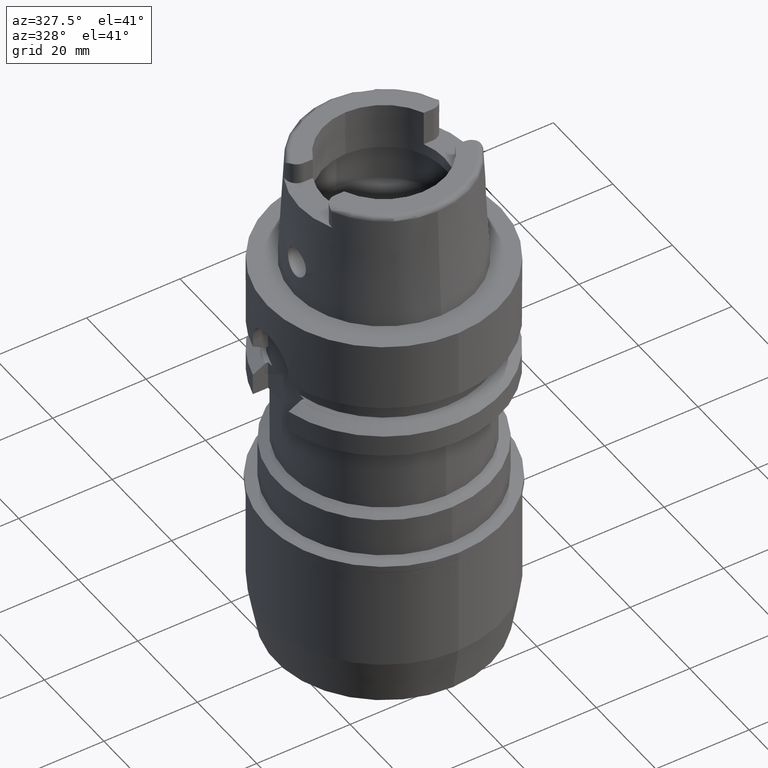
[diagram: clean part render]
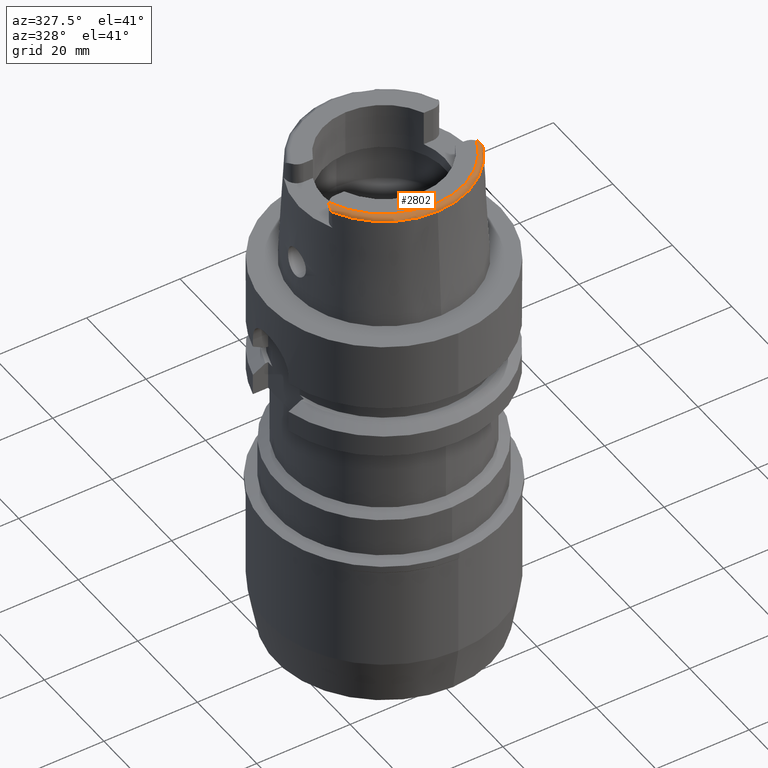
[diagram: same view with one face highlighted and labeled with its STEP entity id]
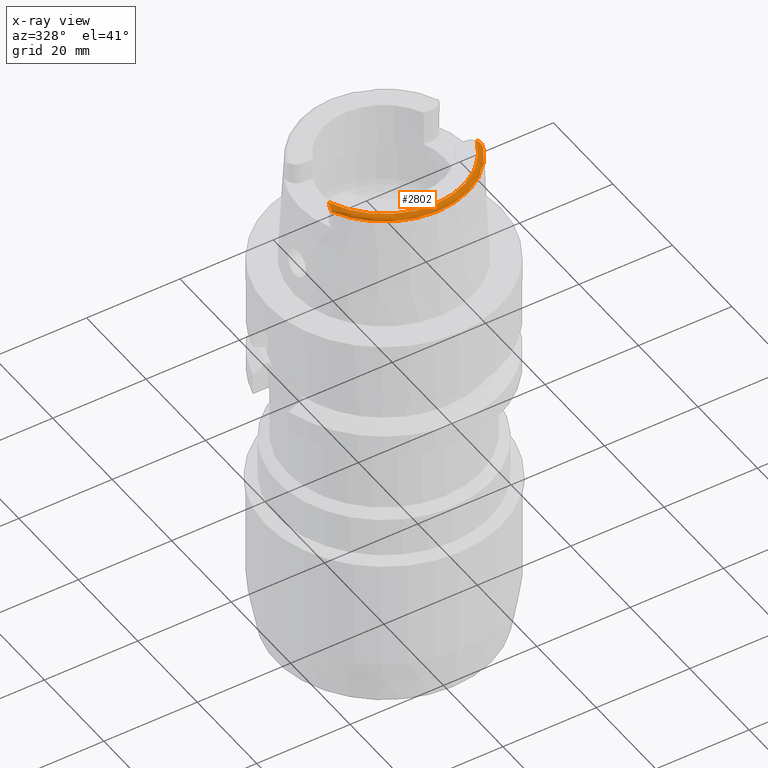
[diagram: x-ray of the same camera — body ghosted, the highlighted face saturated]
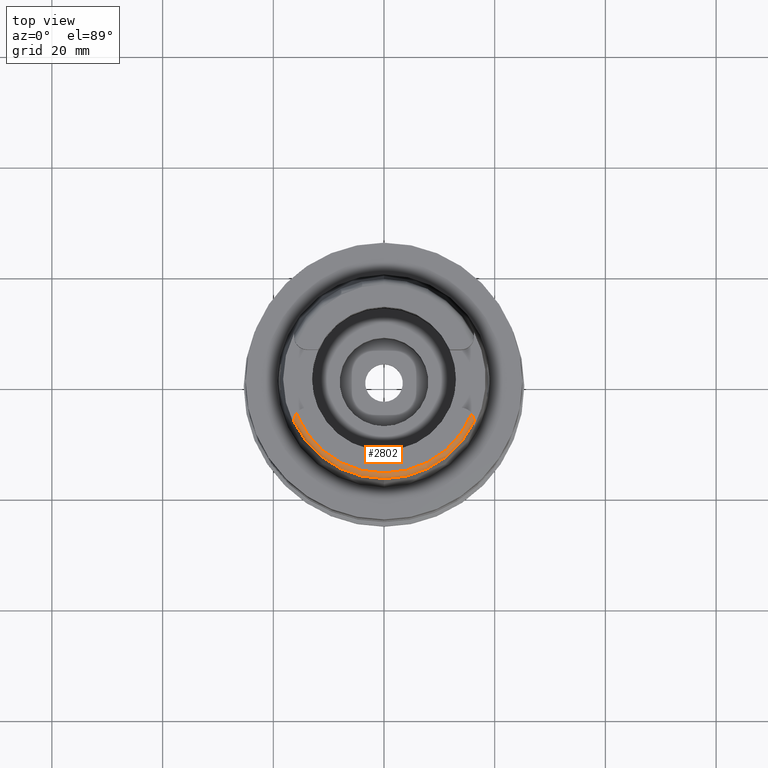
[diagram: same view with one face highlighted and labeled with its STEP entity id]
A machine part, auxiliary view. The second image highlights one B-rep face of the part: STEP entity #2802.
The next image is the same camera in x-ray: the body ghosted, the highlighted face saturated — about 0% of this face is hidden behind the body in this view.
A second angle (top view) of the same face is appended — the face is thin or edge-on in the first view.
In plain terms, the highlighted toroidal blend (fillet) surface has major radius 17.0488 mm and minor (blend) radius 1 mm.
Its self-contained STEP definition (entity closure, byte-faithful):
#185=CARTESIAN_POINT('',(0.E0,0.E0,2.5E1));
#186=DIRECTION('',(0.E0,0.E0,-1.E0));
#187=DIRECTION('',(9.291773910544E-1,-3.696341109170E-1,0.E0));
#188=AXIS2_PLACEMENT_3D('',#185,#186,#187);
#207=CARTESIAN_POINT('',(-1.625999847872E1,-7.831027618095E0,2.404990900414E1));
#208=CARTESIAN_POINT('',(-1.625999847872E1,-7.826527217783E0,2.408896457154E1));
#209=CARTESIAN_POINT('',(-1.626000070993E1,-7.807233681465E0,2.416616408726E1));
#210=CARTESIAN_POINT('',(-1.625999979716E1,-7.745959641931E0,2.428143423934E1));
#211=CARTESIAN_POINT('',(-1.626E1,-7.685380151269E0,2.435409217649E1));
#212=CARTESIAN_POINT('',(-1.626E1,-7.65E0,2.438968791395E1));
#217=CARTESIAN_POINT('',(-1.626E1,-7.65E0,2.438968791395E1));
#218=CARTESIAN_POINT('',(-1.626E1,-7.607164159808E0,2.443278477100E1));
#219=CARTESIAN_POINT('',(-1.625784879729E1,-7.509210453179E0,2.451921040932E1));
#220=CARTESIAN_POINT('',(-1.623987180676E1,-7.318687004837E0,2.465292692581E1));
#221=CARTESIAN_POINT('',(-1.620015352297E1,-7.103632697255E0,2.477502475714E1));
#222=CARTESIAN_POINT('',(-1.613621962987E1,-6.880450595766E0,2.487625439575E1));
#223=CARTESIAN_POINT('',(-1.604994494018E1,-6.663296421905E0,2.494990579914E1));
#224=CARTESIAN_POINT('',(-1.594722020348E1,-6.464272545844E0,2.499212868115E1));
#225=CARTESIAN_POINT('',(-1.587660987306E1,-6.353145710566E0,2.5E1));
#226=CARTESIAN_POINT('',(-1.584131538933E1,-6.301800480794E0,2.5E1));
#231=CARTESIAN_POINT('',(1.584131538933E1,-6.301800480793E0,2.5E1));
#232=CARTESIAN_POINT('',(1.587659616248E1,-6.353125764887E0,2.5E1));
#233=CARTESIAN_POINT('',(1.594719006740E1,-6.464221442651E0,2.499213524612E1));
#234=CARTESIAN_POINT('',(1.604992034251E1,-6.663241448590E0,2.494992160282E1));
#235=CARTESIAN_POINT('',(1.613620641071E1,-6.880409313956E0,2.487627166374E1));
#236=CARTESIAN_POINT('',(1.620015244962E1,-7.103622592015E0,2.477503128860E1));
#237=CARTESIAN_POINT('',(1.623987739670E1,-7.318718291407E0,2.465290922960E1));
#238=CARTESIAN_POINT('',(1.625785179978E1,-7.509266052718E0,2.451916710822E1));
#239=CARTESIAN_POINT('',(1.626E1,-7.607185785596E0,2.443276301343E1));
#240=CARTESIAN_POINT('',(1.626E1,-7.65E0,2.438968791395E1));
#245=CARTESIAN_POINT('',(1.626E1,-7.65E0,2.438968791395E1));
#246=CARTESIAN_POINT('',(1.626E1,-7.685113805128E0,2.435436014559E1));
#247=CARTESIAN_POINT('',(1.626000032115E1,-7.745456068025E0,2.428216236752E1));
#248=CARTESIAN_POINT('',(1.625999887597E1,-7.807163248241E0,2.416649647105E1));
#249=CARTESIAN_POINT('',(1.626000240863E1,-7.826497755236E0,2.408906274958E1));
#250=CARTESIAN_POINT('',(1.626000240863E1,-7.831001017387E0,2.404998234644E1));
#255=CARTESIAN_POINT('',(0.E0,0.E0,2.404993752584E1));
#256=DIRECTION('',(0.E0,0.E0,-1.E0));
#257=DIRECTION('',(9.009559685362E-1,-4.339105239091E-1,0.E0));
#258=AXIS2_PLACEMENT_3D('',#255,#256,#257);
#263=CARTESIAN_POINT('',(0.E0,0.E0,2.404993752584E1));
#264=DIRECTION('',(0.E0,0.E0,-1.E0));
#265=DIRECTION('',(0.E0,-1.E0,0.E0));
#266=AXIS2_PLACEMENT_3D('',#263,#264,#265);
#271=CARTESIAN_POINT('',(0.E0,0.E0,2.404993752584E1));
#272=DIRECTION('',(0.E0,0.E0,-1.E0));
#273=DIRECTION('',(-8.255998758096E-4,-9.999996591924E-1,0.E0));
#274=AXIS2_PLACEMENT_3D('',#271,#272,#273);
#2327=CARTESIAN_POINT('',(-1.584131538933E1,-6.301800480795E0,2.5E1));
#2329=VERTEX_POINT('',#2327);
#2339=CARTESIAN_POINT('',(1.584131538933E1,-6.301800480794E0,2.5E1));
#2340=VERTEX_POINT('',#2339);
#2361=VERTEX_POINT('',#217);
#2371=VERTEX_POINT('',#207);
#2372=VERTEX_POINT('',#240);
#2373=VERTEX_POINT('',#250);
#2374=CARTESIAN_POINT('',(0.E0,-1.804750486565E1,2.404993752584E1));
#2375=VERTEX_POINT('',#2374);
#2376=CARTESIAN_POINT('',(-1.490001777576E-2,-1.804749871493E1,
2.404993752584E1));
#2377=VERTEX_POINT('',#2376);
#2781=CARTESIAN_POINT('',(0.E0,0.E0,2.4E1));
#2782=DIRECTION('',(0.E0,0.E0,1.E0));
#2783=DIRECTION('',(-8.255998758101E-4,-9.999996591924E-1,0.E0));
#2784=AXIS2_PLACEMENT_3D('',#2781,#2782,#2783);
#2785=TOROIDAL_SURFACE('',#2784,1.704875252222E1,1.E0);
#2787=ORIENTED_EDGE('',*,*,#2786,.T.);
#2788=ORIENTED_EDGE('',*,*,#2772,.T.);
#2789=ORIENTED_EDGE('',*,*,#2761,.F.);
#2791=ORIENTED_EDGE('',*,*,#2790,.T.);
#2793=ORIENTED_EDGE('',*,*,#2792,.T.);
#2795=ORIENTED_EDGE('',*,*,#2794,.T.);
#2797=ORIENTED_EDGE('',*,*,#2796,.T.);
#2799=ORIENTED_EDGE('',*,*,#2798,.T.);
#2800=EDGE_LOOP('',(#2787,#2788,#2789,#2791,#2793,#2795,#2797,#2799));
#2801=FACE_OUTER_BOUND('',#2800,.F.);
#189=CIRCLE('',#188,1.704875252222E1);
#213=B_SPLINE_CURVE_WITH_KNOTS('',3,(#207,#208,#209,#210,#211,#212),
.UNSPECIFIED.,.F.,.F.,(4,1,1,4),(0.E0,3.333333333333E-1,6.666666666667E-1,1.E0),
.UNSPECIFIED.);
#227=B_SPLINE_CURVE_WITH_KNOTS('',3,(#217,#218,#219,#220,#221,#222,#223,#224,
#225,#226),.UNSPECIFIED.,.F.,.F.,(4,1,1,1,1,1,1,4),(0.E0,1.428571428571E-1,
2.857142857143E-1,4.285714285714E-1,5.714285714286E-1,7.142857142857E-1,
8.571428571429E-1,1.E0),.UNSPECIFIED.);
#241=B_SPLINE_CURVE_WITH_KNOTS('',3,(#231,#232,#233,#234,#235,#236,#237,#238,
#239,#240),.UNSPECIFIED.,.F.,.F.,(4,1,1,1,1,1,1,4),(0.E0,1.428571428571E-1,
2.857142857143E-1,4.285714285714E-1,5.714285714286E-1,7.142857142857E-1,
8.571428571429E-1,1.E0),.UNSPECIFIED.);
#251=B_SPLINE_CURVE_WITH_KNOTS('',3,(#245,#246,#247,#248,#249,#250),
.UNSPECIFIED.,.F.,.F.,(4,1,1,4),(0.E0,3.333333333333E-1,6.666666666667E-1,1.E0),
.UNSPECIFIED.);
#259=CIRCLE('',#258,1.804750486565E1);
#267=CIRCLE('',#266,1.804750486565E1);
#275=CIRCLE('',#274,1.804750486565E1);
#2761=EDGE_CURVE('',#2340,#2329,#189,.T.);
#2772=EDGE_CURVE('',#2361,#2329,#227,.T.);
#2786=EDGE_CURVE('',#2371,#2361,#213,.T.);
#2790=EDGE_CURVE('',#2340,#2372,#241,.T.);
#2792=EDGE_CURVE('',#2372,#2373,#251,.T.);
#2794=EDGE_CURVE('',#2373,#2375,#259,.T.);
#2796=EDGE_CURVE('',#2375,#2377,#267,.T.);
#2798=EDGE_CURVE('',#2377,#2371,#275,.T.);
#2802=ADVANCED_FACE('',(#2801),#2785,.T.);